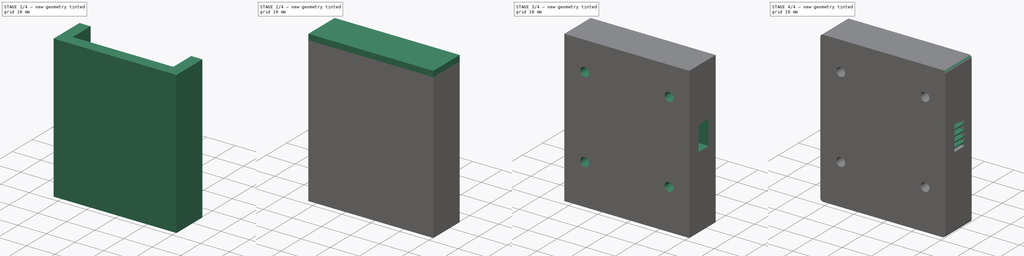
[diagram: build sequence overview — one tinted view per stage of 4, left to right]
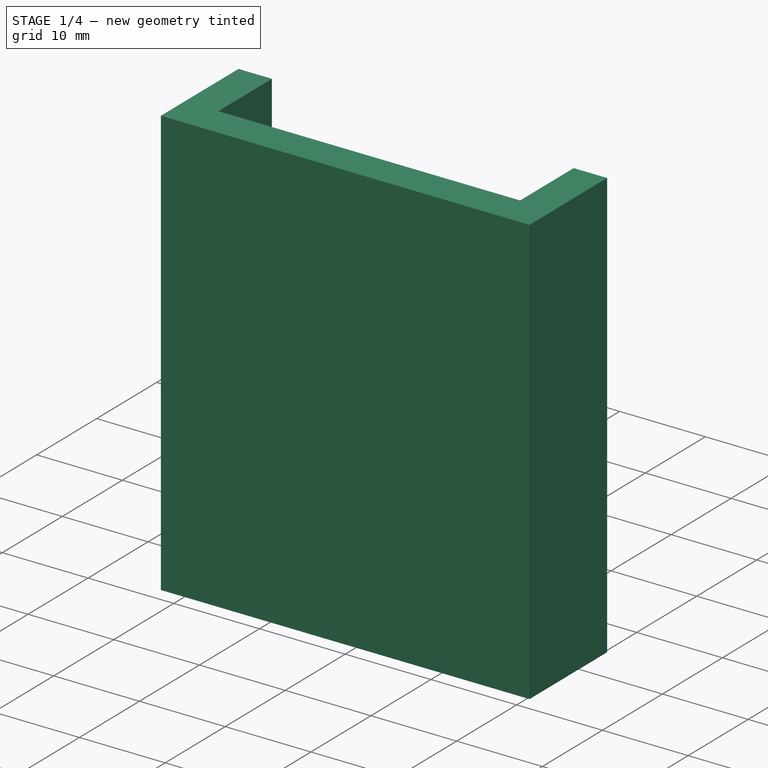
[diagram: stage 1 of 4 — iso view after this stage's code; geometry added in this stage tinted green]
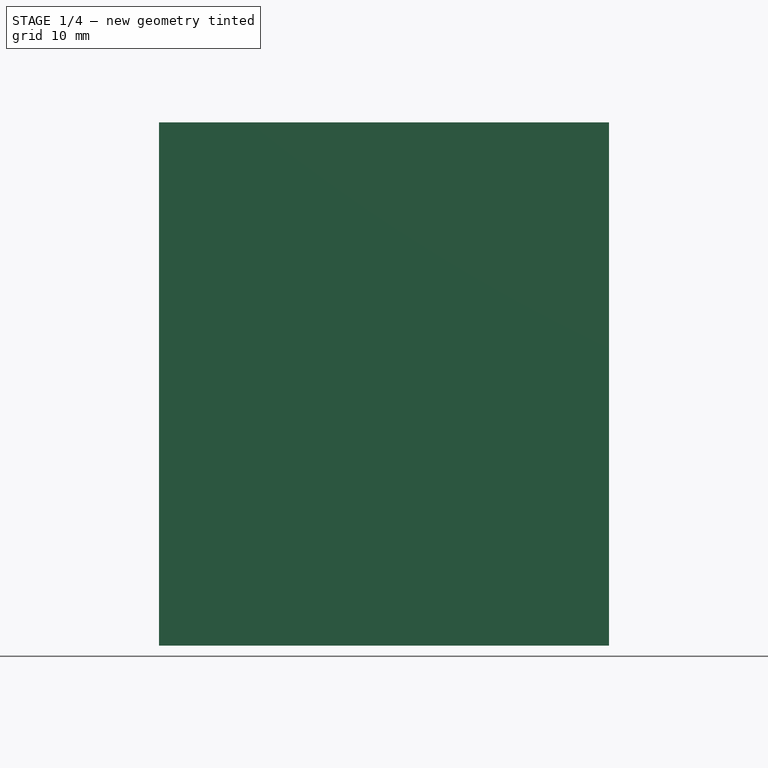
[diagram: stage 1 of 4 — front view after this stage's code; geometry added in this stage tinted green]
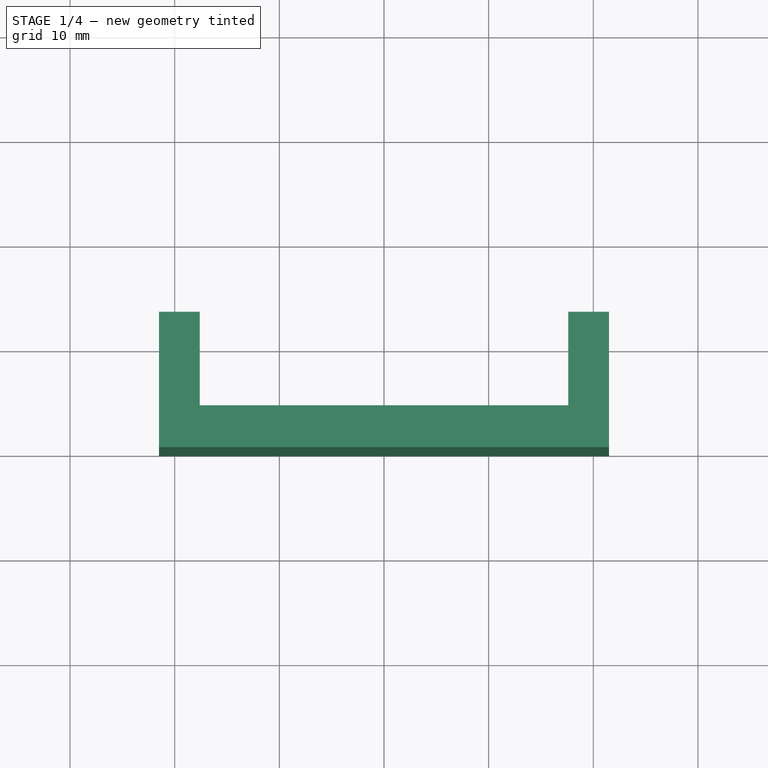
[diagram: stage 1 of 4 — top view after this stage's code; geometry added in this stage tinted green]
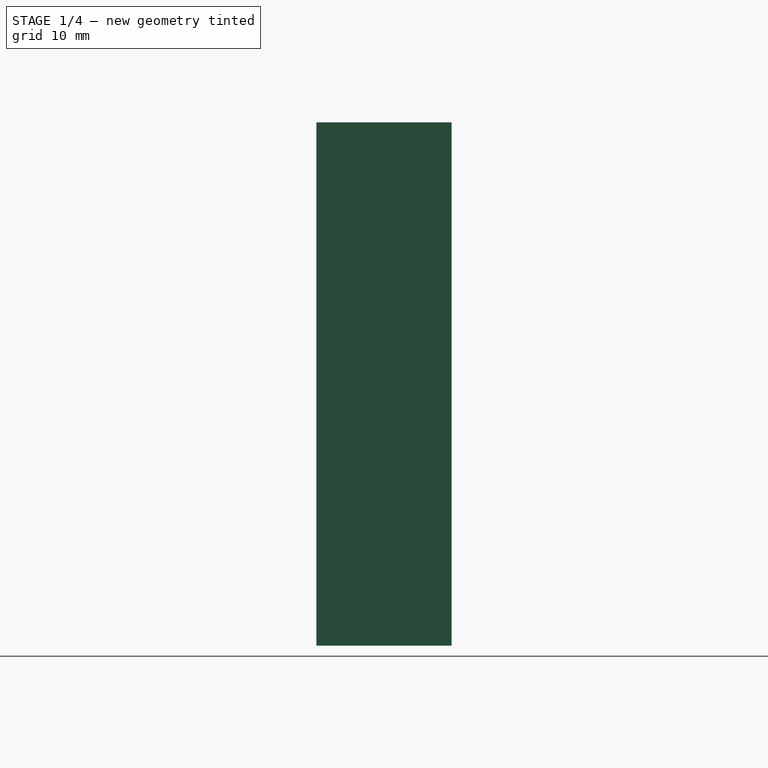
[diagram: stage 1 of 4 — right view after this stage's code; geometry added in this stage tinted green]
FCSTD DOCUMENT  (FreeCAD 0.20R29410 (Git))
Label: kutija1_poklopac_v2
License: All rights reserved
LicenseURL: http://en.wikipedia.org/wiki/All_rights_reserved
objects: Sketcher::SketchObject×8, PartDesign::Pocket×5, PartDesign::Pad×3, PartDesign::Fillet×1, PartDesign::Body×1
note: 27 computed .brp shape members not serialized (recipe doc carries the construction recipe); baked Part::Feature solids carry a one-line shape summary decoded from their .brp

FEATURE [Sketcher::SketchObject] Sketch
  FullyConstrained = true
  MapMode = 5
  Support = -> [XY_Plane]
  sketch-geometry (8):
    g0: LineSegment StartX=-21.5 StartY=12.93 StartZ=0 EndX=-21.5 EndY=0 EndZ=0
    g1: LineSegment StartX=-21.5 StartY=0 StartZ=0 EndX=21.5 EndY=0 EndZ=0
    g2: LineSegment StartX=21.5 StartY=0 StartZ=0 EndX=21.5 EndY=12.93 EndZ=0
    g3: LineSegment StartX=21.5 StartY=12.93 StartZ=0 EndX=17.6 EndY=12.93 EndZ=0
    g4: LineSegment StartX=17.6 StartY=12.93 StartZ=0 EndX=17.6 EndY=4 EndZ=0
    g5: LineSegment StartX=17.6 StartY=4 StartZ=0 EndX=-17.6 EndY=4 EndZ=0
    g6: LineSegment StartX=-17.6 StartY=4 StartZ=0 EndX=-17.6 EndY=12.93 EndZ=0
    g7: LineSegment StartX=-17.6 StartY=12.93 StartZ=0 EndX=-21.5 EndY=12.93 EndZ=0
  constraints (22):
    c: Vertical(g4)
    c: DistanceX(g1,g1) = 43
    c: DistanceX(g5,g5) = 35.2
    c: Equal(g0,g2)
    c: Vertical(g6)
    c: Symmetric(g0,g1,g-2)
    c: Coincident(g5,g6)
    c: Coincident(g4,g5)
    c: Horizontal(g7)
    c: Coincident(g0,g7)
    c: Vertical(g0)
    c: Coincident(g3,g2)
    c: Vertical(g2)
    c: Coincident(g0,g1)
    c: Coincident(g1,g2)
    c: PointOnObject(g-1,g1)
    c: Coincident(g6,g7)
    c: Coincident(g3,g4)
    c: Horizontal(g3)
    c: Symmetric(g5,g4,g-2)
    c: DistanceY(g0,g5) = 4
    c: DistanceY(g6,g6) = 8.93
FEATURE [PartDesign::Pad] Pad
  Direction = (0,0,1)
  Length = 50
  Length2 = 10
  Profile = -> Sketch
  ReferenceAxis = -> Sketch [N_Axis]
  Type = 0
FEATURE [Sketcher::SketchObject] Sketch001
  FullyConstrained = true
  MapMode = 5
  Placement = pos=(0,12.93,0) rot=(0,0.707107,0.707107;3.14159rad)
  Support = -> [Pad]
  sketch-geometry (4):
    g0: LineSegment StartX=-19.65 StartY=6.4 StartZ=0 EndX=19.65 EndY=6.4 EndZ=0
    g1: LineSegment StartX=19.65 StartY=6.4 StartZ=0 EndX=19.65 EndY=3 EndZ=0
    g2: LineSegment StartX=19.65 StartY=3 StartZ=0 EndX=-19.65 EndY=3 EndZ=0
    g3: LineSegment StartX=-19.65 StartY=3 StartZ=0 EndX=-19.65 EndY=6.4 EndZ=0
  constraints (11):
    c: Coincident(g0,g1)
    c: Coincident(g1,g2)
    c: Coincident(g2,g3)
    c: Coincident(g3,g0)
    c: Horizontal(g0)
    c: Vertical(g1)
    c: Vertical(g3)
    c: DistanceY(g1,g1) = 3.4
    c: Symmetric(g2,g1,g-2)
    c: DistanceX(g2,g2) = 39.3
    c: DistanceY(g-1,g1) = 3
FEATURE [PartDesign::Pocket] Pocket
  BaseFeature = -> Pad
  Direction = (0,-1,2e-16)
  Length = 11.33
  Length2 = 5
  Profile = -> Sketch001
  ReferenceAxis = -> Sketch001 [N_Axis]
  Type = 0
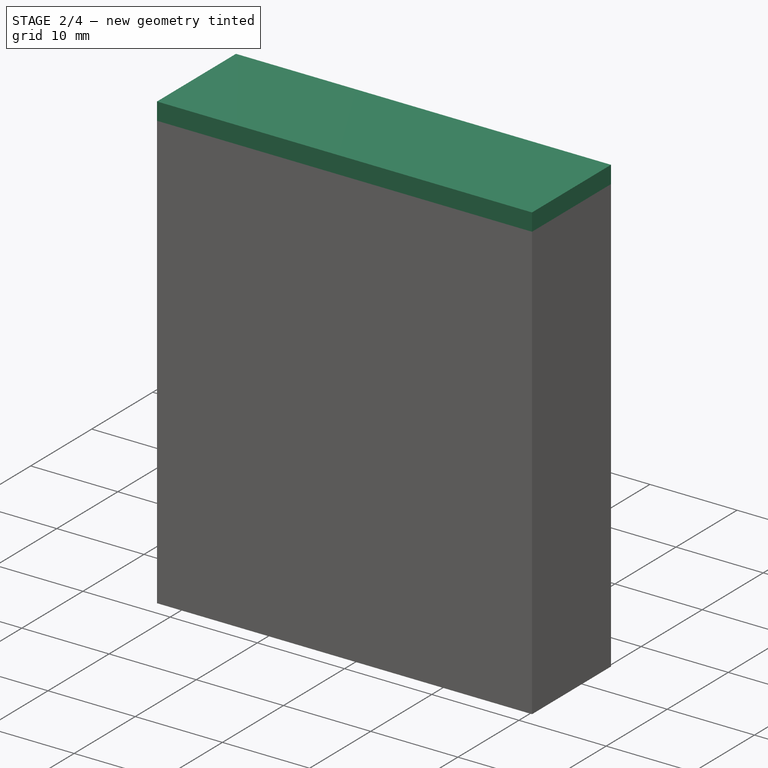
[diagram: stage 2 of 4 — iso view after this stage's code; geometry added in this stage tinted green]
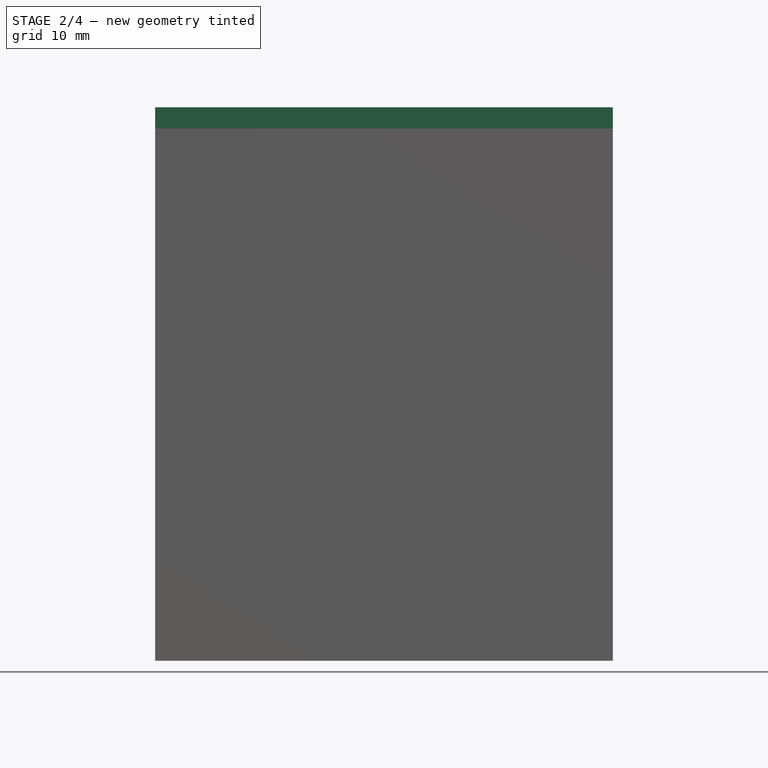
[diagram: stage 2 of 4 — front view after this stage's code; geometry added in this stage tinted green]
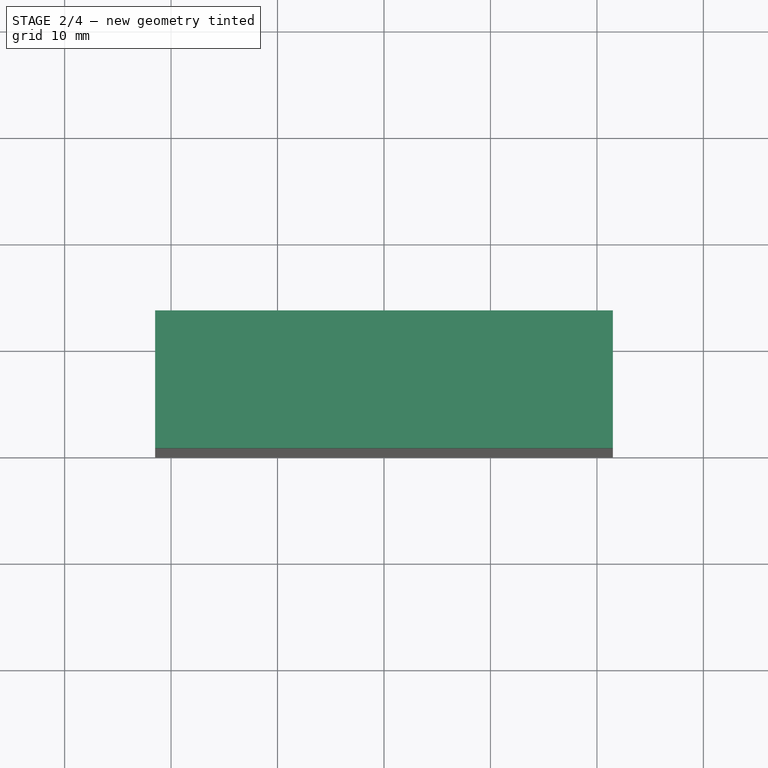
[diagram: stage 2 of 4 — top view after this stage's code; geometry added in this stage tinted green]
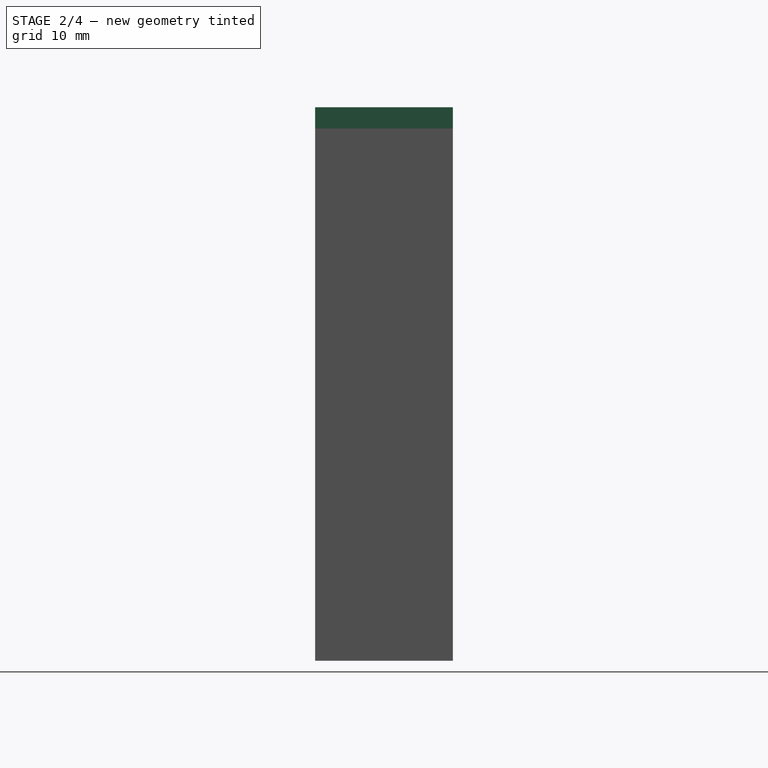
[diagram: stage 2 of 4 — right view after this stage's code; geometry added in this stage tinted green]
FEATURE [Sketcher::SketchObject] Sketch002
  FullyConstrained = true
  MapMode = 5
  Placement = pos=(0,0,50) rot=(0,0,1;0rad)
  Support = -> [Pocket]
  sketch-geometry (4):
    g0: LineSegment StartX=-21.5 StartY=12.93 StartZ=0 EndX=21.5 EndY=12.93 EndZ=0
    g1: LineSegment StartX=21.5 StartY=12.93 StartZ=0 EndX=21.5 EndY=0 EndZ=0
    g2: LineSegment StartX=21.5 StartY=0 StartZ=0 EndX=-21.5 EndY=0 EndZ=0
    g3: LineSegment StartX=-21.5 StartY=0 StartZ=0 EndX=-21.5 EndY=12.93 EndZ=0
  constraints (11):
    c: Coincident(g0,g1)
    c: Coincident(g1,g2)
    c: Coincident(g2,g3)
    c: Coincident(g3,g0)
    c: Horizontal(g0)
    c: Vertical(g1)
    c: Vertical(g3)
    c: Symmetric(g2,g1,g-2)
    c: PointOnObject(g-1,g2)
    c: DistanceY(g1,g1) = 12.93
    c: DistanceX(g2,g2) = 43
FEATURE [PartDesign::Pad] Pad001
  BaseFeature = -> Pocket
  Direction = (0,0,1)
  Length = 2
  Length2 = 10
  Profile = -> Sketch002
  ReferenceAxis = -> Sketch002 [N_Axis]
  Type = 0
FEATURE [Sketcher::SketchObject] Sketch003
  FullyConstrained = false
  MapMode = 5
  Placement = pos=(0,12.93,0) rot=(0,0.707107,0.707107;3.14159rad)
  Support = -> [Pad001]
  sketch-geometry (8):
    g0: LineSegment StartX=-19.8 StartY=-6.10311 StartZ=0 EndX=-19.8 EndY=51.1 EndZ=0
    g1: LineSegment StartX=-19.8 StartY=51.1 StartZ=0 EndX=19.8 EndY=51.1 EndZ=0
    g2: LineSegment StartX=19.8 StartY=51.1 StartZ=0 EndX=19.8 EndY=-6.10311 EndZ=0
    g3: LineSegment StartX=19.8 StartY=-6.10311 StartZ=0 EndX=11.696 EndY=-6.10311 EndZ=0
    g4: LineSegment StartX=11.696 StartY=-6.10311 StartZ=0 EndX=11.696 EndY=45.3254 EndZ=0
    g5: LineSegment StartX=11.696 StartY=45.3254 StartZ=0 EndX=-11.696 EndY=45.3254 EndZ=0
    g6: LineSegment StartX=-11.696 StartY=45.3254 StartZ=0 EndX=-11.696 EndY=-6.10311 EndZ=0
    g7: LineSegment StartX=-11.696 StartY=-6.10311 StartZ=0 EndX=-19.8 EndY=-6.10311 EndZ=0
  constraints (20):
    c: Vertical(g0)
    c: Coincident(g0,g1)
    c: Coincident(g1,g2)
    c: Vertical(g2)
    c: Coincident(g2,g3)
    c: Horizontal(g3)
    c: Coincident(g3,g4)
    c: Vertical(g4)
    c: Coincident(g4,g5)
    c: Horizontal(g5)
    c: Coincident(g5,g6)
    c: Vertical(g6)
    c: Coincident(g6,g7)
    c: Coincident(g7,g0)
    c: Horizontal(g7)
    c: Equal(g7,g3)
    c: Equal(g0,g2)
    c: DistanceY(g-1,g0) = 51.1
    c: DistanceX(g0,g-1) = 19.8
    c: Symmetric(g0,g1,g-2)
FEATURE [PartDesign::Pocket] Pocket001
  BaseFeature = -> Pad001
  Direction = (0,-1,2e-16)
  Length = 1
  Length2 = 5
  Profile = -> Sketch003
  ReferenceAxis = -> Sketch003 [N_Axis]
  Type = 0
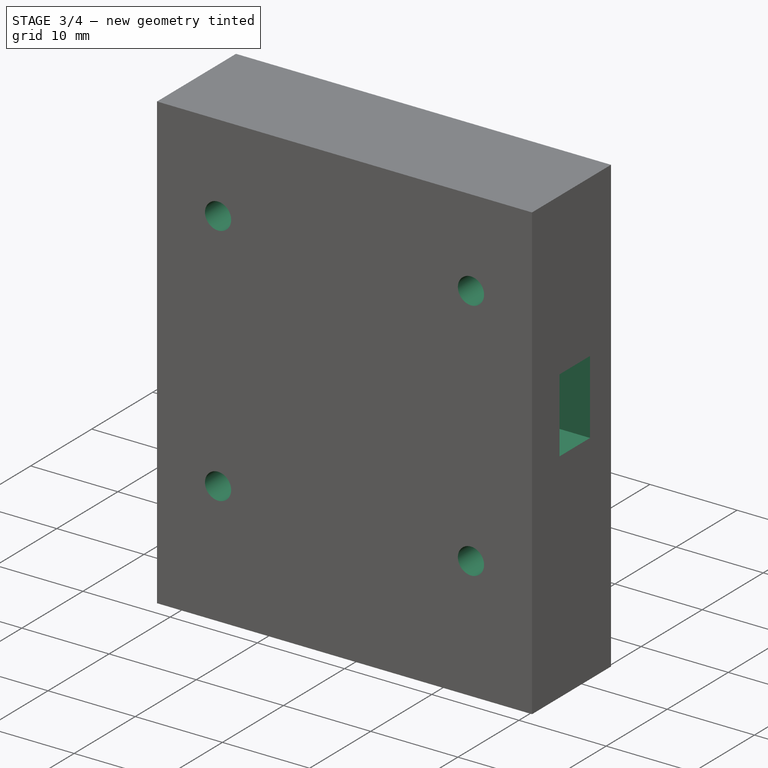
[diagram: stage 3 of 4 — iso view after this stage's code; geometry added in this stage tinted green]
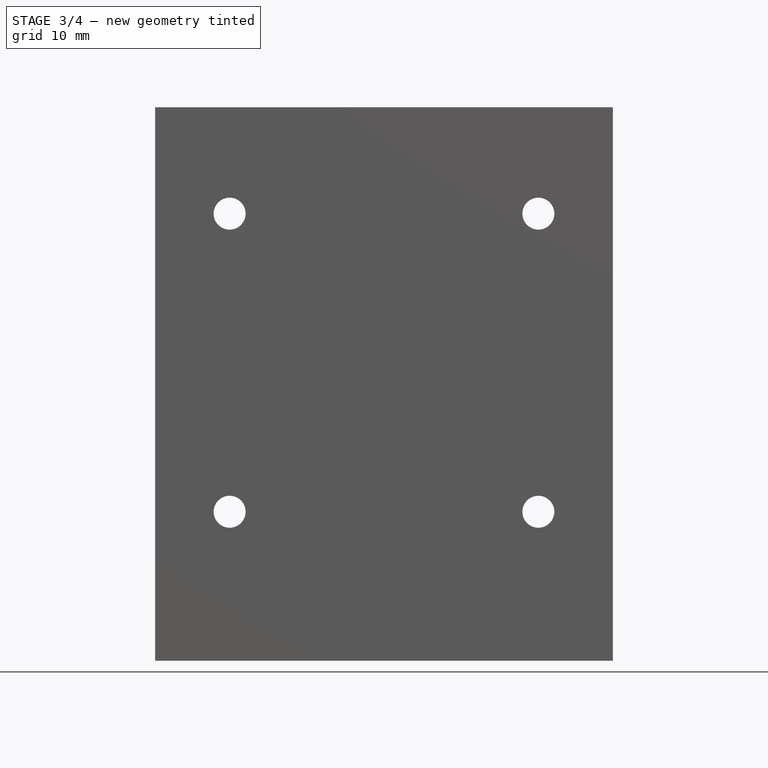
[diagram: stage 3 of 4 — front view after this stage's code; geometry added in this stage tinted green]
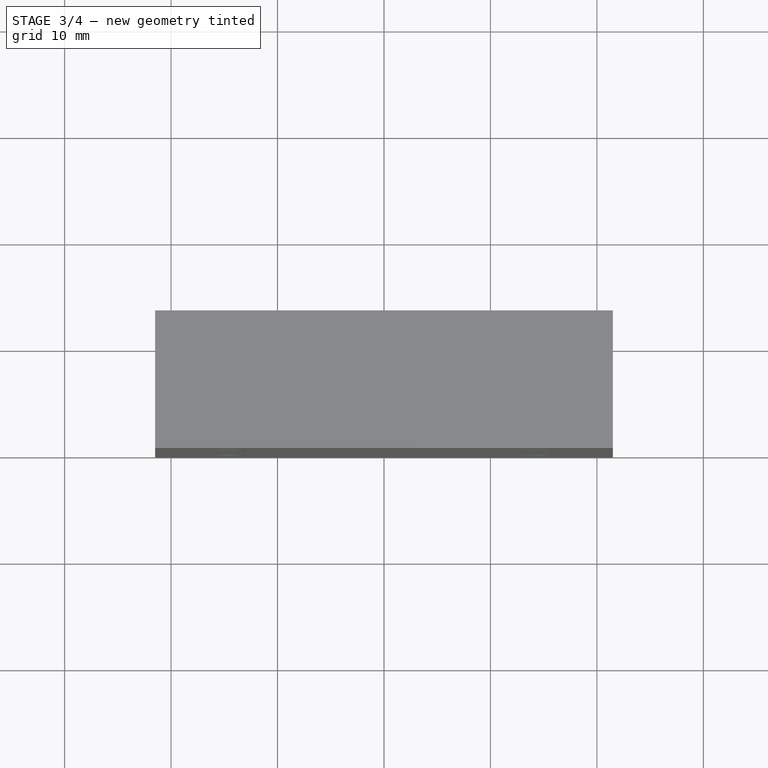
[diagram: stage 3 of 4 — top view after this stage's code; geometry added in this stage tinted green]
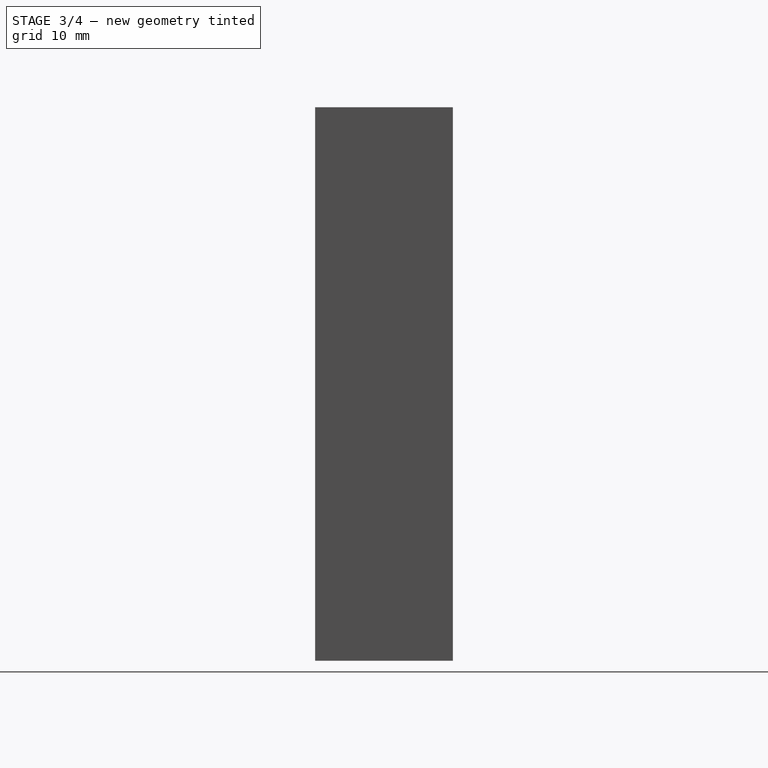
[diagram: stage 3 of 4 — right view after this stage's code; geometry added in this stage tinted green]
FEATURE [Sketcher::SketchObject] Sketch004
  FullyConstrained = true
  MapMode = 5
  Placement = pos=(0,4,0) rot=(0,0.707107,0.707107;3.14159rad)
  Support = -> [Pocket001]
  sketch-geometry (8):
    g0: LineSegment StartX=-14.5 StartY=42 StartZ=0 EndX=14.5 EndY=42 EndZ=0
    g1: LineSegment StartX=14.5 StartY=42 StartZ=0 EndX=14.5 EndY=14 EndZ=0
    g2: LineSegment StartX=14.5 StartY=14 StartZ=0 EndX=-14.5 EndY=14 EndZ=0
    g3: LineSegment StartX=-14.5 StartY=14 StartZ=0 EndX=-14.5 EndY=42 EndZ=0
    g4: Circle CenterX=-14.5 CenterY=42 CenterZ=0 NormalX=0 NormalY=0 NormalZ=1 AngleXU=0 Radius=1.5
    g5: Circle CenterX=14.5 CenterY=42 CenterZ=0 NormalX=0 NormalY=0 NormalZ=1 AngleXU=0 Radius=1.5
    g6: Circle CenterX=-14.5 CenterY=14 CenterZ=0 NormalX=0 NormalY=0 NormalZ=1 AngleXU=0 Radius=1.5
    g7: Circle CenterX=14.5 CenterY=14 CenterZ=0 NormalX=0 NormalY=0 NormalZ=1 AngleXU=0 Radius=1.5
  constraints (19):
    c: Coincident(g0,g1)
    c: Coincident(g1,g2)
    c: Coincident(g2,g3)
    c: Coincident(g3,g0)
    c: Horizontal(g0)
    c: Vertical(g1)
    c: Vertical(g3)
    c: Symmetric(g2,g1,g-2)
    c: DistanceY(g-1,g2) = 14
    c: DistanceX(g2,g2) = 29
    c: DistanceY(g1,g1) = 28
    c: Coincident(g4,g0)
    c: Coincident(g5,g0)
    c: Coincident(g6,g2)
    c: Coincident(g7,g1)
    c: Equal(g7,g5)
    c: Equal(g5,g4)
    c: Equal(g4,g6)
    c: Diameter(g4) = 3
FEATURE [PartDesign::Pocket] Pocket002
  BaseFeature = -> Pocket001
  Direction = (0,-1,2e-16)
  Length = 5
  Length2 = 5
  Profile = -> Sketch004
  ReferenceAxis = -> Sketch004 [N_Axis]
  Type = 1
FEATURE [Sketcher::SketchObject] Sketch005
  FullyConstrained = true
  MapMode = 5
  Placement = pos=(0,4,0) rot=(0,0.707107,0.707107;3.14159rad)
  Support = -> [Pocket002]
  sketch-geometry (8):
    g0: LineSegment StartX=-14.5 StartY=42 StartZ=0 EndX=14.5 EndY=42 EndZ=0
    g1: LineSegment StartX=14.5 StartY=42 StartZ=0 EndX=14.5 EndY=14 EndZ=0
    g2: LineSegment StartX=14.5 StartY=14 StartZ=0 EndX=-14.5 EndY=14 EndZ=0
    g3: LineSegment StartX=-14.5 StartY=14 StartZ=0 EndX=-14.5 EndY=42 EndZ=0
    g4: Circle CenterX=-14.5 CenterY=42 CenterZ=0 NormalX=0 NormalY=0 NormalZ=1 AngleXU=0 Radius=3.75
    g5: Circle CenterX=14.5 CenterY=42 CenterZ=0 NormalX=0 NormalY=0 NormalZ=1 AngleXU=0 Radius=3.75
    g6: Circle CenterX=14.5 CenterY=14 CenterZ=0 NormalX=0 NormalY=0 NormalZ=1 AngleXU=0 Radius=3.75
    g7: Circle CenterX=-14.5 CenterY=14 CenterZ=0 NormalX=0 NormalY=0 NormalZ=1 AngleXU=0 Radius=3.75
  constraints (19):
    c: Coincident(g0,g1)
    c: Coincident(g1,g2)
    c: Coincident(g2,g3)
    c: Coincident(g3,g0)
    c: Horizontal(g0)
    c: Vertical(g1)
    c: Vertical(g3)
    c: Symmetric(g2,g1,g-2)
    c: DistanceY(g-1,g2) = 14
    c: DistanceX(g2,g2) = 29
    c: DistanceY(g1,g1) = 28
    c: Coincident(g4,g0)
    c: Coincident(g5,g0)
    c: Coincident(g6,g1)
    c: Coincident(g7,g2)
    c: Equal(g7,g4)
    c: Equal(g4,g5)
    c: Equal(g5,g6)
    c: Diameter(g5) = 7.5
FEATURE [PartDesign::Pocket] Pocket003
  BaseFeature = -> Pocket002
  Direction = (0,-1,2e-16)
  Length = 5
  Length2 = 5
  Profile = -> Sketch005
  ReferenceAxis = -> Sketch005 [N_Axis]
  Reversed = true
  Type = 1
FEATURE [Sketcher::SketchObject] Sketch006
  FullyConstrained = true
  MapMode = 5
  Placement = pos=(21.5,0,0) rot=(0.57735,0.57735,0.57735;2.0944rad)
  Support = -> [Pocket003]
  sketch-geometry (4):
    g0: LineSegment StartX=4.5 StartY=33.5 StartZ=0 EndX=9.5 EndY=33.5 EndZ=0
    g1: LineSegment StartX=9.5 StartY=33.5 StartZ=0 EndX=9.5 EndY=25 EndZ=0
    g2: LineSegment StartX=9.5 StartY=25 StartZ=0 EndX=4.5 EndY=25 EndZ=0
    g3: LineSegment StartX=4.5 StartY=25 StartZ=0 EndX=4.5 EndY=33.5 EndZ=0
  constraints (12):
    c: Coincident(g0,g1)
    c: Coincident(g1,g2)
    c: Coincident(g2,g3)
    c: Coincident(g3,g0)
    c: Horizontal(g0)
    c: Horizontal(g2)
    c: Vertical(g1)
    c: Vertical(g3)
    c: DistanceX(g2,g2) = 5
    c: DistanceY(g1,g1) = 8.5
    c: DistanceX(g-1,g2) = 4.5
    c: DistanceY(g-1,g2) = 25
FEATURE [PartDesign::Pocket] Pocket004
  BaseFeature = -> Pocket003
  Direction = (-1,0,0)
  Length = 9
  Length2 = 5
  Profile = -> Sketch006
  ReferenceAxis = -> Sketch006 [N_Axis]
  Type = 0
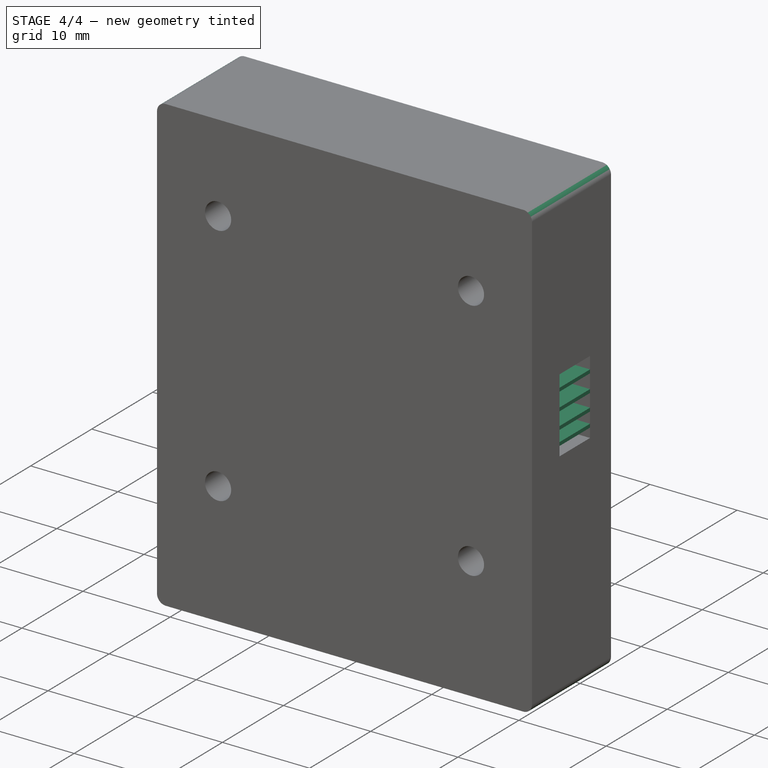
[diagram: stage 4 of 4 — iso view after this stage's code; geometry added in this stage tinted green]
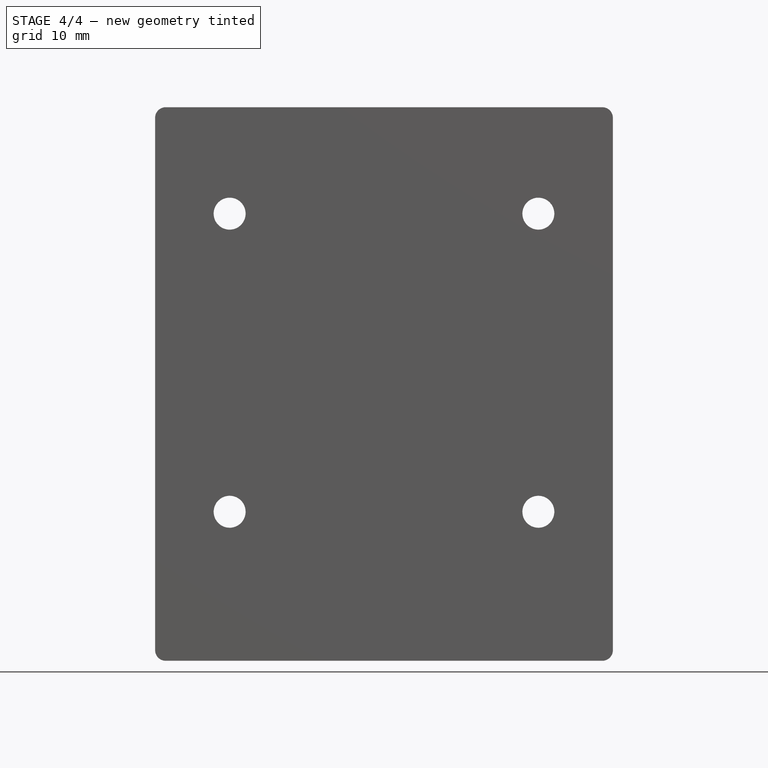
[diagram: stage 4 of 4 — front view after this stage's code; geometry added in this stage tinted green]
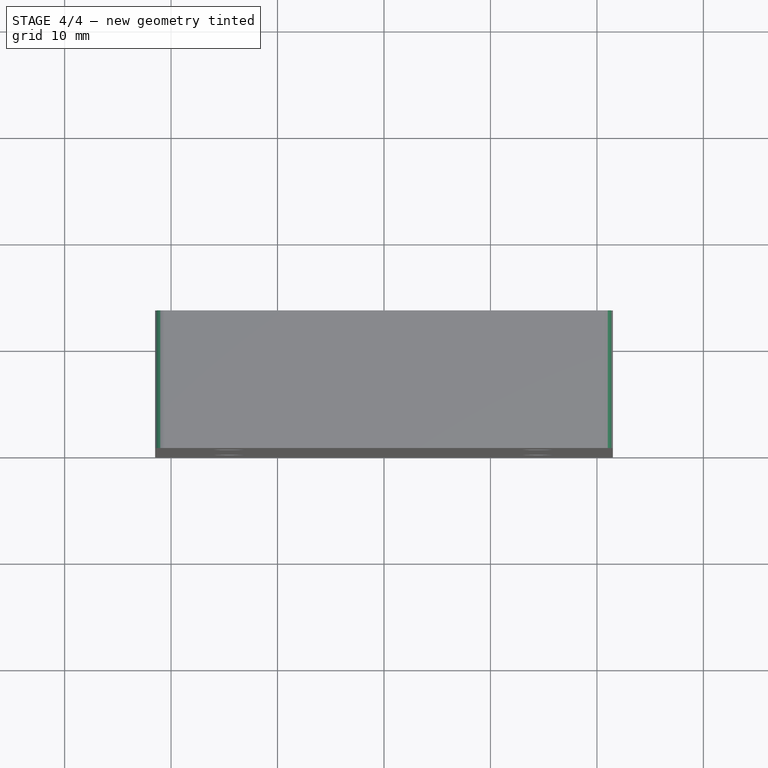
[diagram: stage 4 of 4 — top view after this stage's code; geometry added in this stage tinted green]
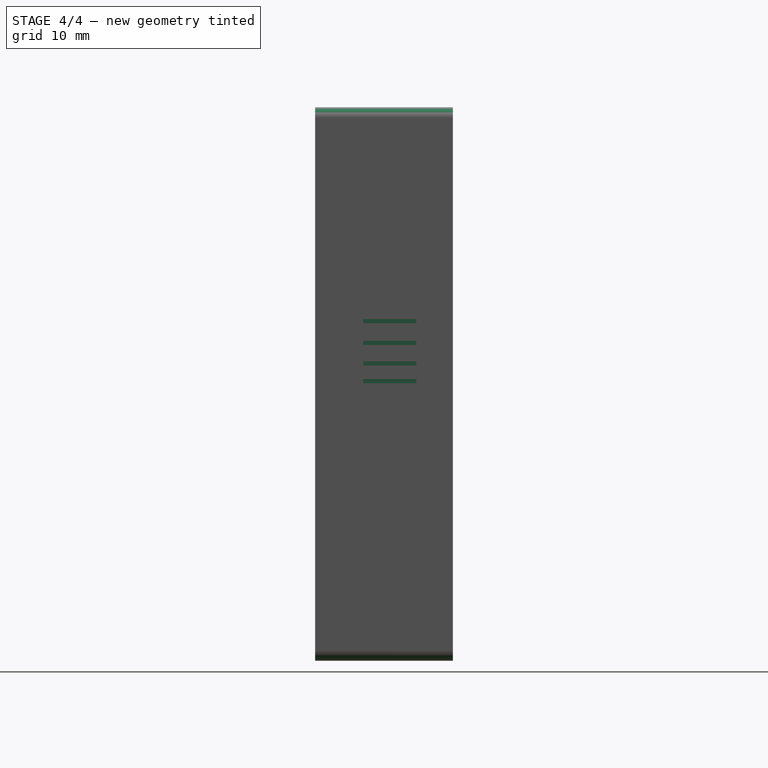
[diagram: stage 4 of 4 — right view after this stage's code; geometry added in this stage tinted green]
FEATURE [Sketcher::SketchObject] Sketch007
  ExternalGeometry = -> [Pocket004]
  FullyConstrained = false
  MapMode = 5
  Placement = pos=(0,4.5,0) rot=(0,0.707107,0.707107;3.14159rad)
  Support = -> [Pocket004]
  sketch-geometry (16):
    g0: LineSegment StartX=-21.5 StartY=32.1029 StartZ=0 EndX=-17.6 EndY=32.1029 EndZ=0
    g1: LineSegment StartX=-17.6 StartY=32.1029 StartZ=0 EndX=-17.6 EndY=31.7029 EndZ=0
    g2: LineSegment StartX=-17.6 StartY=31.7029 StartZ=0 EndX=-21.5 EndY=31.7029 EndZ=0
    g3: LineSegment StartX=-21.5 StartY=31.7029 StartZ=0 EndX=-21.5 EndY=32.1029 EndZ=0
    g4: LineSegment StartX=-21.5 StartY=30.0647 StartZ=0 EndX=-17.6 EndY=30.0647 EndZ=0
    g5: LineSegment StartX=-17.6 StartY=30.0647 StartZ=0 EndX=-17.6 EndY=29.6647 EndZ=0
    g6: LineSegment StartX=-17.6 StartY=29.6647 StartZ=0 EndX=-21.5 EndY=29.6647 EndZ=0
    g7: LineSegment StartX=-21.5 StartY=29.6647 StartZ=0 EndX=-21.5 EndY=30.0647 EndZ=0
    g8: LineSegment StartX=-21.5 StartY=28.1405 StartZ=0 EndX=-17.6 EndY=28.1405 EndZ=0
    g9: LineSegment StartX=-17.6 StartY=28.1405 StartZ=0 EndX=-17.6 EndY=27.7405 EndZ=0
    g10: LineSegment StartX=-17.6 StartY=27.7405 StartZ=0 EndX=-21.5 EndY=27.7405 EndZ=0
    g11: LineSegment StartX=-21.5 StartY=27.7405 StartZ=0 EndX=-21.5 EndY=28.1405 EndZ=0
    g12: LineSegment StartX=-21.5 StartY=26.4739 StartZ=0 EndX=-17.6 EndY=26.4739 EndZ=0
    g13: LineSegment StartX=-17.6 StartY=26.4739 StartZ=0 EndX=-17.6 EndY=26.0739 EndZ=0
    g14: LineSegment StartX=-17.6 StartY=26.0739 StartZ=0 EndX=-21.5 EndY=26.0739 EndZ=0
    g15: LineSegment StartX=-21.5 StartY=26.0739 StartZ=0 EndX=-21.5 EndY=26.4739 EndZ=0
  constraints (44):
    c: Coincident(g0,g1)
    c: Coincident(g1,g2)
    c: Coincident(g2,g3)
    c: Coincident(g3,g0)
    c: Horizontal(g0)
    c: Horizontal(g2)
    c: Vertical(g1)
    c: Vertical(g3)
    c: Coincident(g4,g5)
    c: Coincident(g5,g6)
    c: Coincident(g6,g7)
    c: Coincident(g7,g4)
    c: Horizontal(g4)
    c: Horizontal(g6)
    c: Vertical(g5)
    c: Vertical(g7)
    c: Coincident(g8,g9)
    c: Coincident(g9,g10)
    c: Coincident(g10,g11)
    c: Coincident(g11,g8)
    c: Horizontal(g8)
    c: Horizontal(g10)
    c: Vertical(g9)
    c: Vertical(g11)
    c: Equal(g9,g5)
    c: Equal(g5,g1)
    c: DistanceY(g1,g1) = 0.4
    c: Equal(g2,g4)
    c: Equal(g4,g8)
    c: PointOnObject(g0,g-3)
    c: PointOnObject(g0,g-4)
    c: PointOnObject(g4,g-3)
    c: PointOnObject(g8,g-3)
    c: Coincident(g12,g13)
    c: Coincident(g13,g14)
    c: Coincident(g14,g15)
    c: Coincident(g15,g12)
    c: Horizontal(g12)
    c: Horizontal(g14)
    c: Vertical(g13)
    c: Vertical(g15)
    c: PointOnObject(g12,g-3)
    c: PointOnObject(g13,g-4)
    c: Equal(g13,g9)
FEATURE [PartDesign::Pad] Pad002
  BaseFeature = -> Pocket004
  Direction = (0,1,-2e-16)
  Length = 5.5
  Length2 = 10
  Profile = -> Sketch007
  ReferenceAxis = -> Sketch007 [N_Axis]
  Type = 0
FEATURE [PartDesign::Fillet] Fillet
  Base = -> Pad002 [Edge23,Edge3,Edge105,Edge26]
  BaseFeature = -> Pad002
  Radius = 1
  SupportTransform = false
  UseAllEdges = false
FEATURE [PartDesign::Body] Body
  Group = -> [Sketch,Pad,Sketch001,Pocket,Sketch002,Pad001,Sketch003,Pocket001,Sketch004,Pocket002,Sketch005,Pocket003,Sketch006,Pocket004,Sketch007,Pad002,Fillet]
  Origin = -> Origin
  Tip = -> Fillet
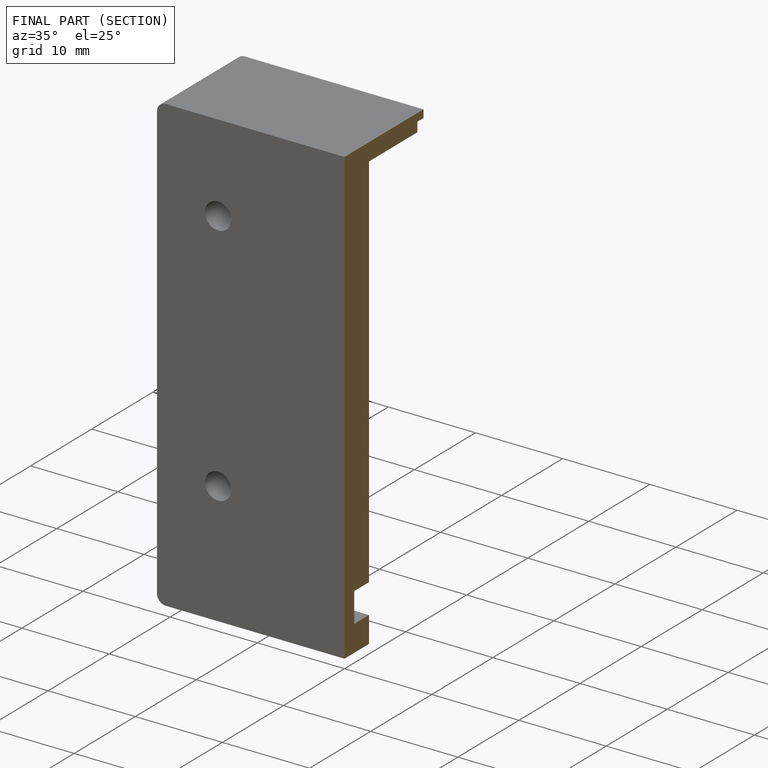
[diagram: finished part — half-section view (interior)]
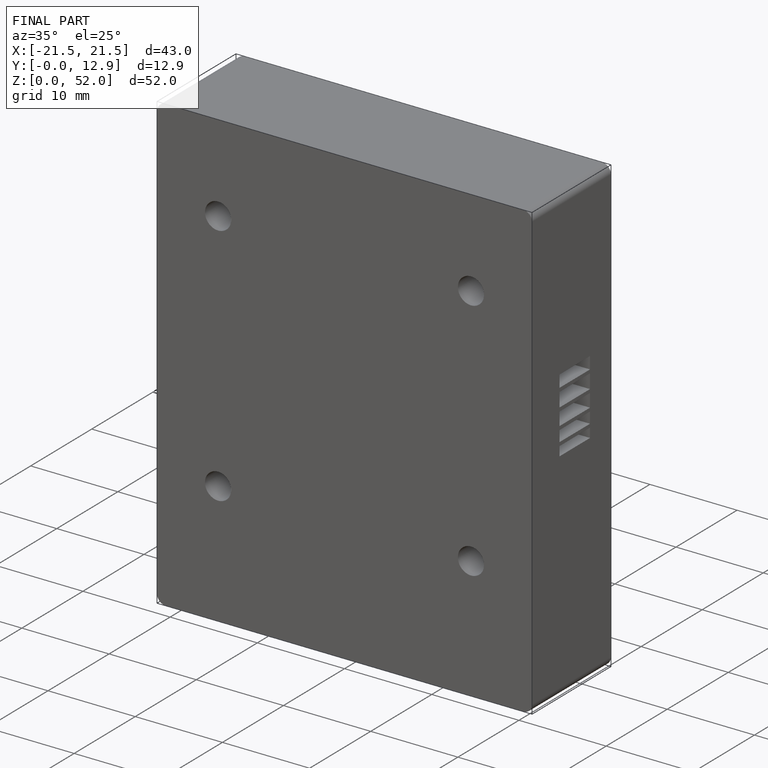
[diagram: finished part — iso view with bounding-box wireframe]
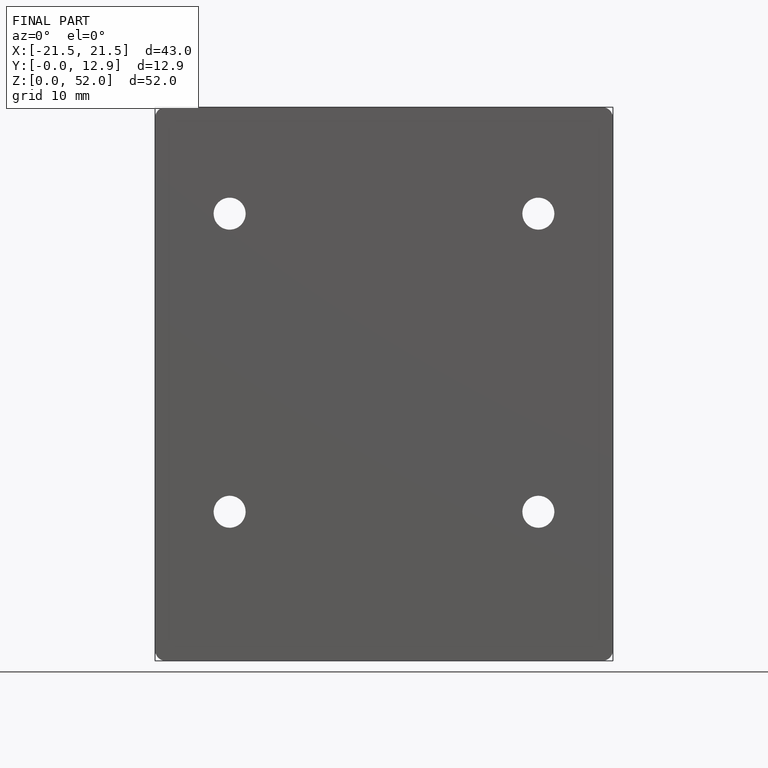
[diagram: finished part — front view with bounding-box wireframe]
